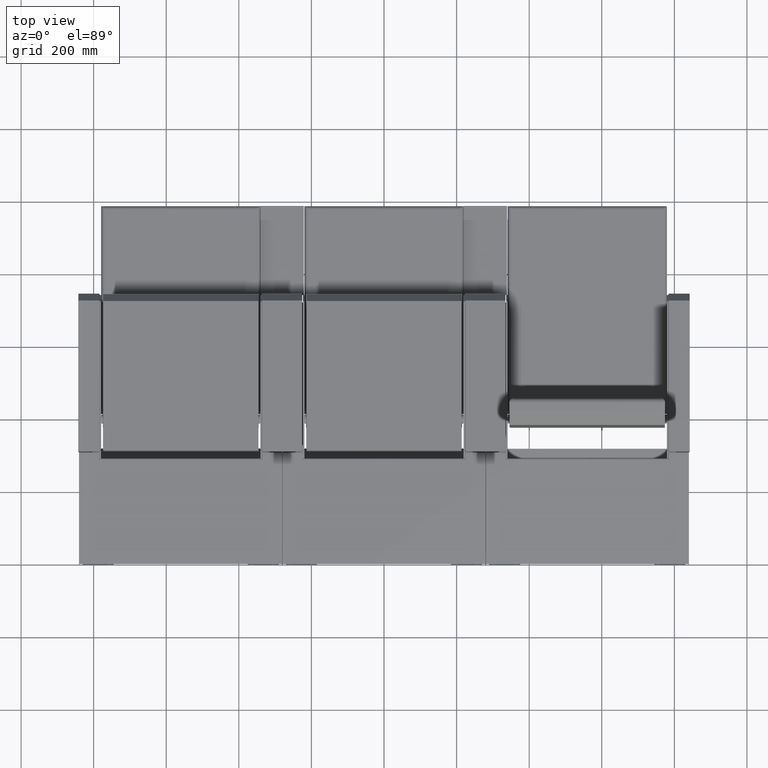
[diagram: clean part render]
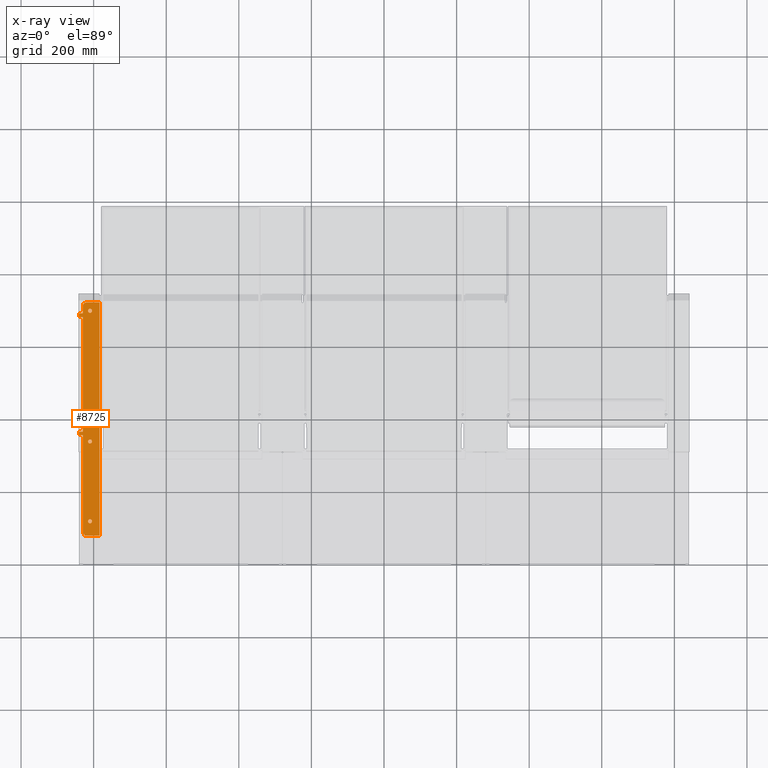
[diagram: x-ray — body ghosted, one internal face saturated and labeled with its STEP entity id]
A machine part, top view, then the same camera in x-ray: the body is ghosted and one INTERNAL B-rep face — a face not visible from any outside direction — is saturated and labeled: STEP entity #8725.
In plain terms, the highlighted planar face has unit normal (0, 0, -1).
Its self-contained STEP definition (entity closure, byte-faithful):
#49 = CARTESIAN_POINT ( 'NONE',  ( 0.0000000000000000000, 0.0000000000000000000, -59.10000000000000100 ) ) ;
#50 = DIRECTION ( 'NONE',  ( 0.0000000000000000000, 0.0000000000000000000, -1.000000000000000000 ) ) ;
#53 = PLANE ( 'NONE',  #7377 ) ;
#55 = DIRECTION ( 'NONE',  ( -1.000000000000000000, 0.0000000000000000000, -0.0000000000000000000 ) ) ;
#1946 = EDGE_LOOP ( 'NONE', ( #9344, #9339 ) ) ;
#1953 = EDGE_LOOP ( 'NONE', ( #9340, #9345 ) ) ;
#1963 = EDGE_LOOP ( 'NONE', ( #9343, #9341 ) ) ;
#1990 = EDGE_LOOP ( 'NONE', ( #9338, #9355, #9354, #9349, #9348, #9351, #9350, #9347, #9346, #9360, #9362, #9353, #9352, #9357, #9356 ) ) ;
#2380 = DIRECTION ( 'NONE',  ( -0.0000000000000000000, -1.000000000000000000, -0.0000000000000000000 ) ) ;
#2381 = CARTESIAN_POINT ( 'NONE',  ( -223.5000000000000000, 0.0000000000000000000, -59.10000000000000100 ) ) ;
#2382 = DIRECTION ( 'NONE',  ( 0.0000000000000000000, -1.000000000000000000, 0.0000000000000000000 ) ) ;
#2383 = CARTESIAN_POINT ( 'NONE',  ( -280.0000000000000000, 268.0000000000000600, -59.10000000000000100 ) ) ;
#2384 = CARTESIAN_POINT ( 'NONE',  ( -270.0000000000000000, 278.0000000000000600, -59.10000000000000100 ) ) ;
#2385 = CARTESIAN_POINT ( 'NONE',  ( -260.0000000000000000, 298.0000000000000600, -59.10000000000000100 ) ) ;
#2386 = DIRECTION ( 'NONE',  ( -0.0000000000000000000, -0.0000000000000000000, 1.000000000000000000 ) ) ;
#2387 = DIRECTION ( 'NONE',  ( -1.000000000000000000, 0.0000000000000000000, 0.0000000000000000000 ) ) ;
#2388 = CARTESIAN_POINT ( 'NONE',  ( -270.0000000000000000, -47.99999999999992200, -59.10000000000000100 ) ) ;
#2389 = DIRECTION ( 'NONE',  ( 1.000000000000000000, 0.0000000000000000000, 0.0000000000000000000 ) ) ;
#2390 = CARTESIAN_POINT ( 'NONE',  ( -280.0000000000000000, -57.99999999999993600, -59.10000000000000100 ) ) ;
#2391 = DIRECTION ( 'NONE',  ( 0.0000000000000000000, 1.000000000000000000, 0.0000000000000000000 ) ) ;
#2392 = CARTESIAN_POINT ( 'NONE',  ( -270.0000000000000000, 268.0000000000000000, -59.10000000000000100 ) ) ;
#2394 = DIRECTION ( 'NONE',  ( -1.000000000000000000, 5.551115123125778000E-015, 0.0000000000000000000 ) ) ;
#2395 = DIRECTION ( 'NONE',  ( 1.000000000000000000, 0.0000000000000000000, 0.0000000000000000000 ) ) ;
#2397 = DIRECTION ( 'NONE',  ( 0.0000000000000000000, 1.000000000000000000, 0.0000000000000000000 ) ) ;
#2398 = CARTESIAN_POINT ( 'NONE',  ( -270.0000000000000000, -57.99999999999993600, -59.10000000000000100 ) ) ;
#2400 = DIRECTION ( 'NONE',  ( -1.000000000000000000, 0.0000000000000000000, 0.0000000000000000000 ) ) ;
#2816 = CARTESIAN_POINT ( 'NONE',  ( -266.0000000000000000, -335.0000000000000000, -59.10000000000093200 ) ) ;
#2845 = DIRECTION ( 'NONE',  ( 1.000000000000000000, 0.0000000000000000000, 0.0000000000000000000 ) ) ;
#2902 = CARTESIAN_POINT ( 'NONE',  ( -266.0000000000000000, -325.0000000000000000, -59.10000000000093200 ) ) ;
#3772 = CARTESIAN_POINT ( 'NONE',  ( -270.0000000000000000, -92.00000000000005700, -59.10000000000000100 ) ) ;
#3774 = DIRECTION ( 'NONE',  ( 0.0000000000000000000, 1.000000000000000000, 0.0000000000000000000 ) ) ;
#3776 = CARTESIAN_POINT ( 'NONE',  ( -270.0000000000000000, -92.00000000000005700, -59.10000000000000100 ) ) ;
#3777 = DIRECTION ( 'NONE',  ( 0.0000000000000000000, 1.000000000000000000, 0.0000000000000000000 ) ) ;
#3951 = CARTESIAN_POINT ( 'NONE',  ( -250.0000000000000000, -294.9999999999999400, -59.10000000000000100 ) ) ;
#3952 = DIRECTION ( 'NONE',  ( 0.0000000000000000000, 0.0000000000000000000, -1.000000000000000000 ) ) ;
#3953 = DIRECTION ( 'NONE',  ( -1.000000000000000000, 0.0000000000000000000, 0.0000000000000000000 ) ) ;
#5499 = CIRCLE ( 'NONE', #7319, 5.500000000000005300 ) ;
#5689 = LINE ( 'NONE', #3772, #5692 ) ;
#5692 = VECTOR ( 'NONE', #3774, 1000.000000000000000 ) ;
#5693 = LINE ( 'NONE', #3776, #5696 ) ;
#5696 = VECTOR ( 'NONE', #3777, 1000.000000000000000 ) ;
#5815 = FACE_BOUND ( 'NONE', #1946, .T. ) ;
#5820 = FACE_BOUND ( 'NONE', #1963, .T. ) ;
#5821 = FACE_OUTER_BOUND ( 'NONE', #1990, .T. ) ;
#5822 = FACE_BOUND ( 'NONE', #1953, .T. ) ;
#6567 = EDGE_CURVE ( 'NONE', #9605, #9790, #10360, .T. ) ;
#6635 = EDGE_CURVE ( 'NONE', #9475, #9944, #10506, .T. ) ;
#6644 = EDGE_CURVE ( 'NONE', #9554, #9596, #10519, .T. ) ;
#6676 = EDGE_CURVE ( 'NONE', #9763, #9560, #10558, .T. ) ;
#6678 = EDGE_CURVE ( 'NONE', #9769, #9940, #10564, .T. ) ;
#6679 = EDGE_CURVE ( 'NONE', #9944, #9475, #10560, .T. ) ;
#6680 = EDGE_CURVE ( 'NONE', #9596, #9554, #10567, .T. ) ;
#6681 = EDGE_CURVE ( 'NONE', #9530, #9498, #10568, .T. ) ;
#6682 = EDGE_CURVE ( 'NONE', #9498, #9605, #10569, .T. ) ;
#6683 = EDGE_CURVE ( 'NONE', #9560, #9790, #10571, .T. ) ;
#6684 = EDGE_CURVE ( 'NONE', #9763, #9545, #10573, .T. ) ;
#6685 = EDGE_CURVE ( 'NONE', #9568, #9545, #10575, .T. ) ;
#6686 = EDGE_CURVE ( 'NONE', #9570, #9568, #10566, .T. ) ;
#6687 = EDGE_CURVE ( 'NONE', #9624, #9570, #10576, .T. ) ;
#6688 = EDGE_CURVE ( 'NONE', #9511, #9624, #10580, .T. ) ;
#6689 = EDGE_CURVE ( 'NONE', #9508, #9779, #10578, .T. ) ;
#6690 = EDGE_CURVE ( 'NONE', #9583, #9508, #10582, .T. ) ;
#6691 = EDGE_CURVE ( 'NONE', #9503, #9583, #10586, .T. ) ;
#6799 = EDGE_CURVE ( 'NONE', #9940, #9769, #5499, .T. ) ;
#7273 = AXIS2_PLACEMENT_3D ( 'NONE', #8918, #8919, #8920 ) ;
#7279 = AXIS2_PLACEMENT_3D ( 'NONE', #8943, #8944, #8945 ) ;
#7293 = AXIS2_PLACEMENT_3D ( 'NONE', #9030, #9031, #9032 ) ;
#7294 = AXIS2_PLACEMENT_3D ( 'NONE', #9035, #9036, #9037 ) ;
#7295 = AXIS2_PLACEMENT_3D ( 'NONE', #9040, #9041, #9042 ) ;
#7296 = AXIS2_PLACEMENT_3D ( 'NONE', #2385, #2386, #2387 ) ;
#7319 = AXIS2_PLACEMENT_3D ( 'NONE', #3951, #3952, #3953 ) ;
#7377 = AXIS2_PLACEMENT_3D ( 'NONE', #49, #50, #55 ) ;
#7697 = CARTESIAN_POINT ( 'NONE',  ( -244.5000000000000000, -74.99999999999995700, -59.10000000000000100 ) ) ;
#7720 = CARTESIAN_POINT ( 'NONE',  ( -266.0000000000000000, -330.9999999999998300, -59.10000000000093200 ) ) ;
#7725 = CARTESIAN_POINT ( 'NONE',  ( -270.0000000000000000, -57.99999999999993600, -59.10000000000000100 ) ) ;
#7730 = CARTESIAN_POINT ( 'NONE',  ( -280.0000000000000000, -47.99999999999992200, -59.10000000000000100 ) ) ;
#7733 = CARTESIAN_POINT ( 'NONE',  ( -270.0000000000000000, 268.0000000000000000, -59.10000000000000100 ) ) ;
#7752 = CARTESIAN_POINT ( 'NONE',  ( -270.0000000000000000, -330.9999999999998300, -59.10000000000000100 ) ) ;
#7767 = CARTESIAN_POINT ( 'NONE',  ( -270.0000000000000000, 298.0000000000000600, -59.10000000000000100 ) ) ;
#7776 = CARTESIAN_POINT ( 'NONE',  ( -244.5000000000000000, 285.0000000000000600, -59.10000000000000100 ) ) ;
#7782 = CARTESIAN_POINT ( 'NONE',  ( -223.5000000000000000, 308.0000000000000600, -59.10000000000000100 ) ) ;
#7789 = CARTESIAN_POINT ( 'NONE',  ( -270.0000000000000000, 278.0000000000000600, -59.10000000000000100 ) ) ;
#7791 = CARTESIAN_POINT ( 'NONE',  ( -280.0000000000000000, 278.0000000000000600, -59.10000000000000100 ) ) ;
#7804 = CARTESIAN_POINT ( 'NONE',  ( -280.0000000000000000, -57.99999999999993600, -59.10000000000000100 ) ) ;
#7817 = CARTESIAN_POINT ( 'NONE',  ( -255.5000000000000000, 285.0000000000000600, -59.10000000000000100 ) ) ;
#7826 = CARTESIAN_POINT ( 'NONE',  ( -266.0000000000000000, -335.0000000000000000, -59.10000000000093200 ) ) ;
#7845 = CARTESIAN_POINT ( 'NONE',  ( -280.0000000000000000, 268.0000000000000600, -59.10000000000000100 ) ) ;
#7983 = CARTESIAN_POINT ( 'NONE',  ( -260.0000000000000000, 308.0000000000000600, -59.10000000000000100 ) ) ;
#7989 = CARTESIAN_POINT ( 'NONE',  ( -255.5000000000000000, -294.9999999999999400, -59.10000000000000100 ) ) ;
#7999 = CARTESIAN_POINT ( 'NONE',  ( -270.0000000000000000, -47.99999999999992200, -59.10000000000000100 ) ) ;
#8010 = CARTESIAN_POINT ( 'NONE',  ( -223.5000000000000000, -335.0000000000000000, -59.10000000000093200 ) ) ;
#8155 = CARTESIAN_POINT ( 'NONE',  ( -244.5000000000000000, -294.9999999999999400, -59.10000000000000100 ) ) ;
#8159 = CARTESIAN_POINT ( 'NONE',  ( -255.5000000000000000, -74.99999999999995700, -59.10000000000000100 ) ) ;
#8536 = EDGE_CURVE ( 'NONE', #9779, #9511, #5689, .T. ) ;
#8538 = EDGE_CURVE ( 'NONE', #9530, #9503, #5693, .T. ) ;
#8725 = ADVANCED_FACE ( 'NONE', ( #5820, #5822, #5815, #5821 ), #53, .F. ) ;
#8918 = CARTESIAN_POINT ( 'NONE',  ( -250.0000000000000000, -74.99999999999995700, -59.10000000000000100 ) ) ;
#8919 = DIRECTION ( 'NONE',  ( -0.0000000000000000000, -0.0000000000000000000, -1.000000000000000000 ) ) ;
#8920 = DIRECTION ( 'NONE',  ( 1.000000000000000000, 0.0000000000000000000, 0.0000000000000000000 ) ) ;
#8943 = CARTESIAN_POINT ( 'NONE',  ( -250.0000000000000000, 285.0000000000000600, -59.10000000000000100 ) ) ;
#8944 = DIRECTION ( 'NONE',  ( -0.0000000000000000000, -0.0000000000000000000, -1.000000000000000000 ) ) ;
#8945 = DIRECTION ( 'NONE',  ( 1.000000000000000000, 0.0000000000000000000, 0.0000000000000000000 ) ) ;
#9024 = CARTESIAN_POINT ( 'NONE',  ( -270.0000000000000000, 308.0000000000000600, -59.10000000000000100 ) ) ;
#9027 = DIRECTION ( 'NONE',  ( 1.000000000000000000, 0.0000000000000000000, 0.0000000000000000000 ) ) ;
#9030 = CARTESIAN_POINT ( 'NONE',  ( -250.0000000000000000, -294.9999999999999400, -59.10000000000000100 ) ) ;
#9031 = DIRECTION ( 'NONE',  ( 0.0000000000000000000, 0.0000000000000000000, -1.000000000000000000 ) ) ;
#9032 = DIRECTION ( 'NONE',  ( -1.000000000000000000, 0.0000000000000000000, 0.0000000000000000000 ) ) ;
#9033 = CARTESIAN_POINT ( 'NONE',  ( 0.0000000000000000000, -330.9999999999998300, -59.10000000000000100 ) ) ;
#9034 = DIRECTION ( 'NONE',  ( 1.000000000000000000, 0.0000000000000000000, 0.0000000000000000000 ) ) ;
#9035 = CARTESIAN_POINT ( 'NONE',  ( -250.0000000000000000, -74.99999999999995700, -59.10000000000000100 ) ) ;
#9036 = DIRECTION ( 'NONE',  ( -0.0000000000000000000, -0.0000000000000000000, -1.000000000000000000 ) ) ;
#9037 = DIRECTION ( 'NONE',  ( 1.000000000000000000, 0.0000000000000000000, 0.0000000000000000000 ) ) ;
#9038 = CARTESIAN_POINT ( 'NONE',  ( -270.0000000000000000, -92.00000000000005700, -59.10000000000000100 ) ) ;
#9039 = DIRECTION ( 'NONE',  ( 0.0000000000000000000, 1.000000000000000000, 0.0000000000000000000 ) ) ;
#9040 = CARTESIAN_POINT ( 'NONE',  ( -250.0000000000000000, 285.0000000000000600, -59.10000000000000100 ) ) ;
#9041 = DIRECTION ( 'NONE',  ( -0.0000000000000000000, -0.0000000000000000000, -1.000000000000000000 ) ) ;
#9042 = DIRECTION ( 'NONE',  ( 1.000000000000000000, 0.0000000000000000000, 0.0000000000000000000 ) ) ;
#9338 = ORIENTED_EDGE ( 'NONE', *, *, #6681, .T. ) ;
#9339 = ORIENTED_EDGE ( 'NONE', *, *, #6644, .T. ) ;
#9340 = ORIENTED_EDGE ( 'NONE', *, *, #6679, .T. ) ;
#9341 = ORIENTED_EDGE ( 'NONE', *, *, #6678, .T. ) ;
#9343 = ORIENTED_EDGE ( 'NONE', *, *, #6799, .T. ) ;
#9344 = ORIENTED_EDGE ( 'NONE', *, *, #6680, .T. ) ;
#9345 = ORIENTED_EDGE ( 'NONE', *, *, #6635, .T. ) ;
#9346 = ORIENTED_EDGE ( 'NONE', *, *, #6687, .F. ) ;
#9347 = ORIENTED_EDGE ( 'NONE', *, *, #6686, .F. ) ;
#9348 = ORIENTED_EDGE ( 'NONE', *, *, #6676, .F. ) ;
#9349 = ORIENTED_EDGE ( 'NONE', *, *, #6683, .F. ) ;
#9350 = ORIENTED_EDGE ( 'NONE', *, *, #6685, .F. ) ;
#9351 = ORIENTED_EDGE ( 'NONE', *, *, #6684, .T. ) ;
#9352 = ORIENTED_EDGE ( 'NONE', *, *, #6690, .F. ) ;
#9353 = ORIENTED_EDGE ( 'NONE', *, *, #6689, .F. ) ;
#9354 = ORIENTED_EDGE ( 'NONE', *, *, #6567, .T. ) ;
#9355 = ORIENTED_EDGE ( 'NONE', *, *, #6682, .T. ) ;
#9356 = ORIENTED_EDGE ( 'NONE', *, *, #8538, .F. ) ;
#9357 = ORIENTED_EDGE ( 'NONE', *, *, #6691, .F. ) ;
#9360 = ORIENTED_EDGE ( 'NONE', *, *, #6688, .F. ) ;
#9362 = ORIENTED_EDGE ( 'NONE', *, *, #8536, .F. ) ;
#9475 = VERTEX_POINT ( 'NONE', #7697 ) ;
#9498 = VERTEX_POINT ( 'NONE', #7720 ) ;
#9503 = VERTEX_POINT ( 'NONE', #7725 ) ;
#9508 = VERTEX_POINT ( 'NONE', #7730 ) ;
#9511 = VERTEX_POINT ( 'NONE', #7733 ) ;
#9530 = VERTEX_POINT ( 'NONE', #7752 ) ;
#9545 = VERTEX_POINT ( 'NONE', #7767 ) ;
#9554 = VERTEX_POINT ( 'NONE', #7776 ) ;
#9560 = VERTEX_POINT ( 'NONE', #7782 ) ;
#9568 = VERTEX_POINT ( 'NONE', #7789 ) ;
#9570 = VERTEX_POINT ( 'NONE', #7791 ) ;
#9583 = VERTEX_POINT ( 'NONE', #7804 ) ;
#9596 = VERTEX_POINT ( 'NONE', #7817 ) ;
#9605 = VERTEX_POINT ( 'NONE', #7826 ) ;
#9624 = VERTEX_POINT ( 'NONE', #7845 ) ;
#9763 = VERTEX_POINT ( 'NONE', #7983 ) ;
#9769 = VERTEX_POINT ( 'NONE', #7989 ) ;
#9779 = VERTEX_POINT ( 'NONE', #7999 ) ;
#9790 = VERTEX_POINT ( 'NONE', #8010 ) ;
#9940 = VERTEX_POINT ( 'NONE', #8155 ) ;
#9944 = VERTEX_POINT ( 'NONE', #8159 ) ;
#10360 = LINE ( 'NONE', #2816, #10390 ) ;
#10390 = VECTOR ( 'NONE', #2845, 1000.000000000000000 ) ;
#10506 = CIRCLE ( 'NONE', #7273, 5.500000000000005300 ) ;
#10519 = CIRCLE ( 'NONE', #7279, 5.500000000000005300 ) ;
#10558 = LINE ( 'NONE', #9024, #10563 ) ;
#10560 = CIRCLE ( 'NONE', #7294, 5.500000000000005300 ) ;
#10563 = VECTOR ( 'NONE', #9027, 1000.000000000000000 ) ;
#10564 = CIRCLE ( 'NONE', #7293, 5.500000000000005300 ) ;
#10566 = LINE ( 'NONE', #2384, #10579 ) ;
#10567 = CIRCLE ( 'NONE', #7295, 5.500000000000005300 ) ;
#10568 = LINE ( 'NONE', #9033, #10570 ) ;
#10569 = LINE ( 'NONE', #2902, #10572 ) ;
#10570 = VECTOR ( 'NONE', #9034, 1000.000000000000000 ) ;
#10571 = LINE ( 'NONE', #2381, #10574 ) ;
#10572 = VECTOR ( 'NONE', #2380, 1000.000000000000000 ) ;
#10573 = CIRCLE ( 'NONE', #7296, 10.00000000000000900 ) ;
#10574 = VECTOR ( 'NONE', #2382, 1000.000000000000000 ) ;
#10575 = LINE ( 'NONE', #9038, #10577 ) ;
#10576 = LINE ( 'NONE', #2383, #10581 ) ;
#10577 = VECTOR ( 'NONE', #9039, 1000.000000000000000 ) ;
#10578 = LINE ( 'NONE', #2388, #10585 ) ;
#10579 = VECTOR ( 'NONE', #2389, 1000.000000000000000 ) ;
#10580 = LINE ( 'NONE', #2392, #10583 ) ;
#10581 = VECTOR ( 'NONE', #2391, 1000.000000000000000 ) ;
#10582 = LINE ( 'NONE', #2390, #10587 ) ;
#10583 = VECTOR ( 'NONE', #2394, 1000.000000000000000 ) ;
#10585 = VECTOR ( 'NONE', #2395, 1000.000000000000000 ) ;
#10586 = LINE ( 'NONE', #2398, #10589 ) ;
#10587 = VECTOR ( 'NONE', #2397, 1000.000000000000000 ) ;
#10589 = VECTOR ( 'NONE', #2400, 1000.000000000000000 ) ;